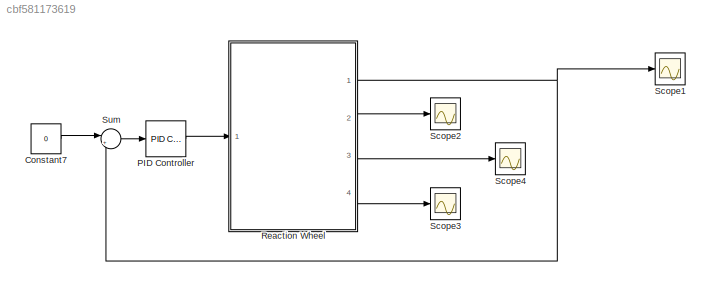
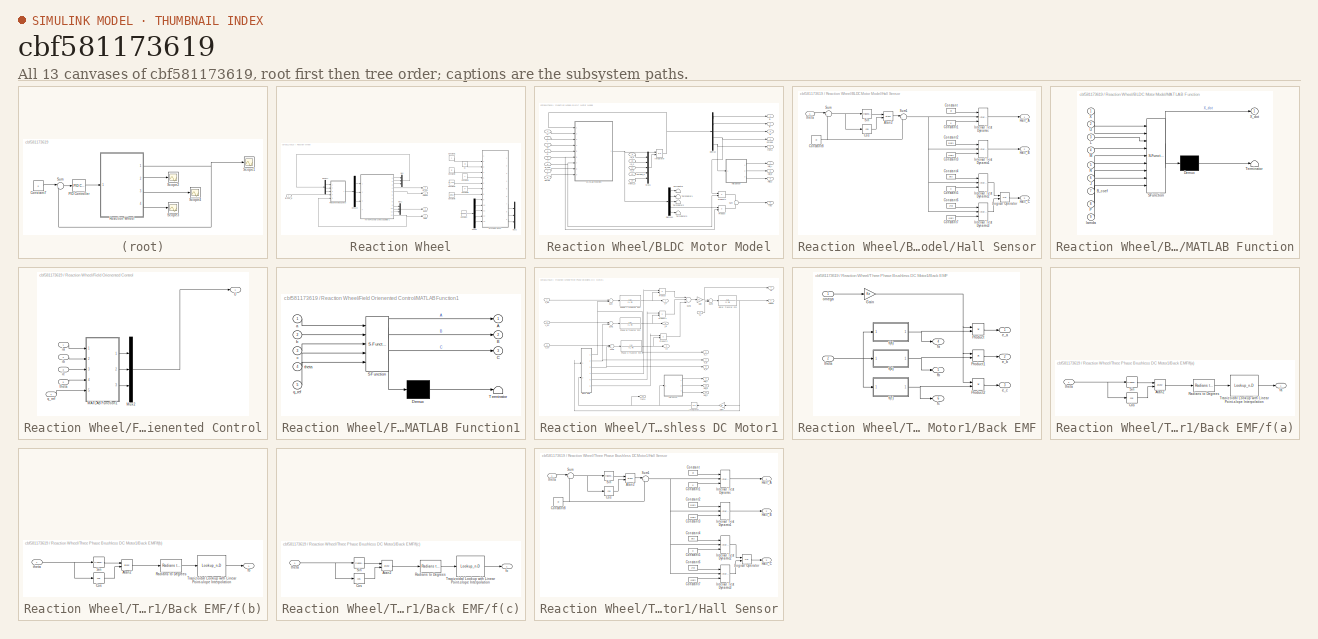
[diagram: thumbnail index - all 13 canvases of the model, root first then tree order]
MODEL slx_cbf581173619
KIND model
CONFIG AbsTol = auto
CONFIG EnableMultiTasking = off
CONFIG FixedStep = auto
CONFIG MaxStep = auto
CONFIG MinStep = auto
CONFIG RelTol = 1e-3
CONFIG SampleTimeConstraint = Unconstrained
CONFIG Solver = VariableStepAuto
CONFIG SolverName = VariableStepAuto
CONFIG StartTime = 0.0
CONFIG StopTime = 10.0
BLOCK [Constant] Constant7
  Value = 0
BLOCK [Reference] PID Controller  REF=simulink/Continuous/PID Controller
  Ports = [1, 1]
  SourceBlock = simulink/Continuous/PID Controller
  SourceProductBaseCode = SL
  SourceProductName = Simulink
  SourceType = PID 1dof
BLOCK [SubSystem] Reaction Wheel
  Ports = [1, 4]
  RequestExecContextInheritance = off
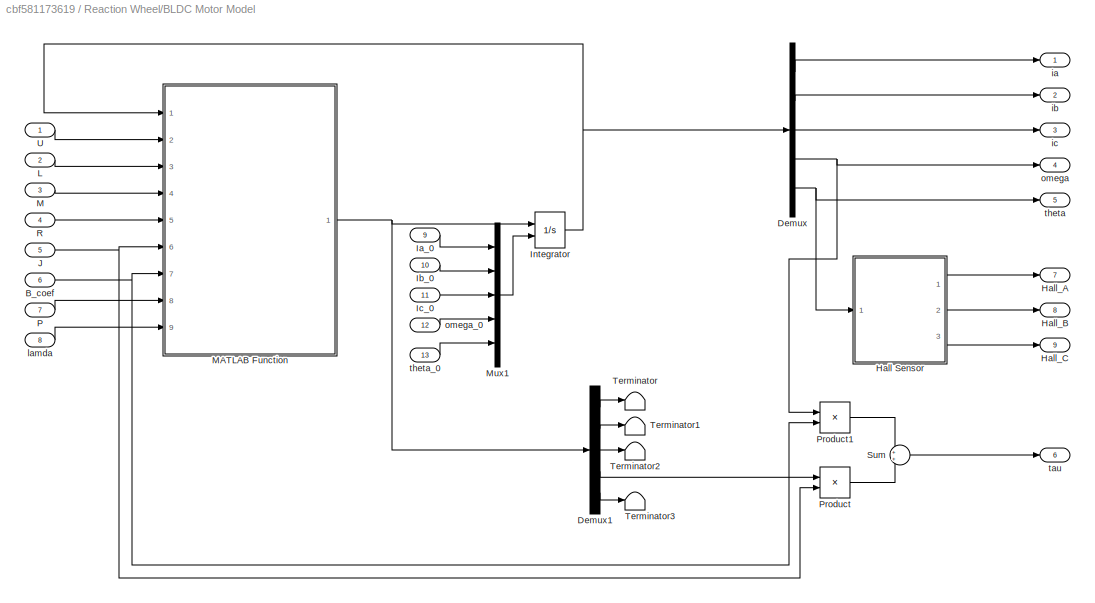
BLOCK [SubSystem] Reaction Wheel/BLDC Motor Model
  Commented = on
  Ports = [13, 9]
  RequestExecContextInheritance = off
BLOCK [Inport] Reaction Wheel/BLDC Motor Model/B_coef
  IconDisplay = Port number
  Port = 6
BLOCK [Demux] Reaction Wheel/BLDC Motor Model/Demux
  DisplayOption = bar
  Outputs = 5
  Ports = [1, 5]
BLOCK [Demux] Reaction Wheel/BLDC Motor Model/Demux1
  DisplayOption = bar
  Outputs = 5
  Ports = [1, 5]
BLOCK [SubSystem] Reaction Wheel/BLDC Motor Model/Hall Sensor
  Ports = [1, 3]
  RequestExecContextInheritance = off
BLOCK [Trigonometry] Reaction Wheel/BLDC Motor Model/Hall Sensor/Atan2
  Operator = atan2
  Ports = [2, 1]
BLOCK [Constant] Reaction Wheel/BLDC Motor Model/Hall Sensor/Constant
  Value = pi
BLOCK [Constant] Reaction Wheel/BLDC Motor Model/Hall Sensor/Constant1
  Value = 0
BLOCK [Constant] Reaction Wheel/BLDC Motor Model/Hall Sensor/Constant2
  Value = 5*pi/3
BLOCK [Constant] Reaction Wheel/BLDC Motor Model/Hall Sensor/Constant3
  Value = 2*pi/3
BLOCK [Constant] Reaction Wheel/BLDC Motor Model/Hall Sensor/Constant4
  Value = pi/3
BLOCK [Constant] Reaction Wheel/BLDC Motor Model/Hall Sensor/Constant5
  Value = 0
BLOCK [Constant] Reaction Wheel/BLDC Motor Model/Hall Sensor/Constant6
  Value = 2*pi
BLOCK [Constant] Reaction Wheel/BLDC Motor Model/Hall Sensor/Constant7
  Value = 4*pi/3
BLOCK [Constant] Reaction Wheel/BLDC Motor Model/Hall Sensor/Constant8
  Value = pi
BLOCK [Trigonometry] Reaction Wheel/BLDC Motor Model/Hall Sensor/Cos
  Operator = cos
  Ports = [1, 1]
BLOCK [Outport] Reaction Wheel/BLDC Motor Model/Hall Sensor/Hall_A
  IconDisplay = Port number
BLOCK [Outport] Reaction Wheel/BLDC Motor Model/Hall Sensor/Hall_B
  IconDisplay = Port number
  Port = 2
BLOCK [Outport] Reaction Wheel/BLDC Motor Model/Hall Sensor/Hall_C
  IconDisplay = Port number
  Port = 3
BLOCK [Reference] Reaction Wheel/BLDC Motor Model/Hall Sensor/Interval Test Dynamic  REF=simulink/Logic and Bit
Operations/Interval Test
Dynamic
  Ports = [3, 1]
  SourceBlock = simulink/Logic and Bit\nOperations/Interval Test\nDynamic
  SourceProductBaseCode = SL
  SourceProductName = Simulink
  SourceType = Interval Test Dynamic
BLOCK [Reference] Reaction Wheel/BLDC Motor Model/Hall Sensor/Interval Test Dynamic1  REF=simulink/Logic and Bit
Operations/Interval Test
Dynamic
  Ports = [3, 1]
  SourceBlock = simulink/Logic and Bit\nOperations/Interval Test\nDynamic
  SourceProductBaseCode = SL
  SourceProductName = Simulink
  SourceType = Interval Test Dynamic
BLOCK [Reference] Reaction Wheel/BLDC Motor Model/Hall Sensor/Interval Test Dynamic2  REF=simulink/Logic and Bit
Operations/Interval Test
Dynamic
  Ports = [3, 1]
  SourceBlock = simulink/Logic and Bit\nOperations/Interval Test\nDynamic
  SourceProductBaseCode = SL
  SourceProductName = Simulink
  SourceType = Interval Test Dynamic
BLOCK [Reference] Reaction Wheel/BLDC Motor Model/Hall Sensor/Interval Test Dynamic3  REF=simulink/Logic and Bit
Operations/Interval Test
Dynamic
  Ports = [3, 1]
  SourceBlock = simulink/Logic and Bit\nOperations/Interval Test\nDynamic
  SourceProductBaseCode = SL
  SourceProductName = Simulink
  SourceType = Interval Test Dynamic
BLOCK [Logic] Reaction Wheel/BLDC Motor Model/Hall Sensor/Logical Operator
  AllPortsSameDT = off
  Operator = OR
  OutDataTypeStr = boolean
  Ports = [2, 1]
BLOCK [Trigonometry] Reaction Wheel/BLDC Motor Model/Hall Sensor/Sin
  Ports = [1, 1]
BLOCK [Sum] Reaction Wheel/BLDC Motor Model/Hall Sensor/Sum
  IconShape = round
  InputSameDT = off
  Inputs = |+-
  OutDataTypeStr = Inherit: Inherit via internal rule
  Ports = [2, 1]
  SaturateOnIntegerOverflow = off
BLOCK [Sum] Reaction Wheel/BLDC Motor Model/Hall Sensor/Sum1
  IconShape = round
  InputSameDT = off
  Inputs = |++
  OutDataTypeStr = Inherit: Inherit via internal rule
  Ports = [2, 1]
  SaturateOnIntegerOverflow = off
BLOCK [Inport] Reaction Wheel/BLDC Motor Model/Hall Sensor/theta
  IconDisplay = Port number
BLOCK [Outport] Reaction Wheel/BLDC Motor Model/Hall_A
  IconDisplay = Port number
  Port = 7
BLOCK [Outport] Reaction Wheel/BLDC Motor Model/Hall_B
  IconDisplay = Port number
  Port = 8
BLOCK [Outport] Reaction Wheel/BLDC Motor Model/Hall_C
  IconDisplay = Port number
  Port = 9
BLOCK [Inport] Reaction Wheel/BLDC Motor Model/Ia_0
  IconDisplay = Port number
  Port = 9
BLOCK [Inport] Reaction Wheel/BLDC Motor Model/Ib_0
  IconDisplay = Port number
  Port = 10
BLOCK [Inport] Reaction Wheel/BLDC Motor Model/Ic_0
  IconDisplay = Port number
  Port = 11
BLOCK [Integrator] Reaction Wheel/BLDC Motor Model/Integrator
  InitialCondition = [0;0;0;0;0]
  InitialConditionSource = external
  Ports = [2, 1]
BLOCK [Inport] Reaction Wheel/BLDC Motor Model/J
  IconDisplay = Port number
  Port = 5
BLOCK [Inport] Reaction Wheel/BLDC Motor Model/L
  IconDisplay = Port number
  Port = 2
BLOCK [Inport] Reaction Wheel/BLDC Motor Model/M
  IconDisplay = Port number
  Port = 3
BLOCK [SubSystem] Reaction Wheel/BLDC Motor Model/MATLAB Function
  ErrorFcn = Stateflow.Translate.translate
  PermitHierarchicalResolution = ExplicitOnly
  Ports = [9, 1]
  RequestExecContextInheritance = off
  SFBlockType = MATLAB Function
  TreatAsAtomicUnit = on
BLOCK [Demux] Reaction Wheel/BLDC Motor Model/MATLAB Function/ Demux 
  Outputs = 1
  Ports = [1, 1]
BLOCK [S-Function] Reaction Wheel/BLDC Motor Model/MATLAB Function/ SFunction 
  EnableBusSupport = on
  FunctionName = sf_sfun
  PortCounts = [9 2]
  Ports = [9, 2]
  SFcnIsStateOwnerBlock = off
  SFunctionDeploymentMode = off
  Tag = Stateflow S-Function ReactionWheel 2
BLOCK [Terminator] Reaction Wheel/BLDC Motor Model/MATLAB Function/ Terminator 
BLOCK [Inport] Reaction Wheel/BLDC Motor Model/MATLAB Function/B_coef
  IconDisplay = Port number
  Port = 7
BLOCK [Inport] Reaction Wheel/BLDC Motor Model/MATLAB Function/J
  IconDisplay = Port number
  Port = 6
BLOCK [Inport] Reaction Wheel/BLDC Motor Model/MATLAB Function/L
  IconDisplay = Port number
  Port = 3
BLOCK [Inport] Reaction Wheel/BLDC Motor Model/MATLAB Function/M
  IconDisplay = Port number
  Port = 4
BLOCK [Inport] Reaction Wheel/BLDC Motor Model/MATLAB Function/P
  IconDisplay = Port number
  Port = 8
BLOCK [Inport] Reaction Wheel/BLDC Motor Model/MATLAB Function/R
  IconDisplay = Port number
  Port = 5
BLOCK [Inport] Reaction Wheel/BLDC Motor Model/MATLAB Function/U
  IconDisplay = Port number
  Port = 2
BLOCK [Inport] Reaction Wheel/BLDC Motor Model/MATLAB Function/X
  IconDisplay = Port number
BLOCK [Outport] Reaction Wheel/BLDC Motor Model/MATLAB Function/X_dot
  IconDisplay = Port number
BLOCK [Inport] Reaction Wheel/BLDC Motor Model/MATLAB Function/lamda
  IconDisplay = Port number
  Port = 9
BLOCK [Mux] Reaction Wheel/BLDC Motor Model/Mux1
  DisplayOption = bar
  Inputs = 5
  Ports = [5, 1]
BLOCK [Inport] Reaction Wheel/BLDC Motor Model/P
  IconDisplay = Port number
  Port = 7
BLOCK [Product] Reaction Wheel/BLDC Motor Model/Product
  InputSameDT = off
  OutDataTypeStr = Inherit: Inherit via internal rule
  Ports = [2, 1]
  RndMeth = Floor
  SaturateOnIntegerOverflow = off
BLOCK [Product] Reaction Wheel/BLDC Motor Model/Product1
  InputSameDT = off
  OutDataTypeStr = Inherit: Inherit via internal rule
  Ports = [2, 1]
  RndMeth = Floor
  SaturateOnIntegerOverflow = off
BLOCK [Inport] Reaction Wheel/BLDC Motor Model/R
  IconDisplay = Port number
  Port = 4
BLOCK [Sum] Reaction Wheel/BLDC Motor Model/Sum
  IconShape = round
  InputSameDT = off
  OutDataTypeStr = Inherit: Inherit via internal rule
  Ports = [2, 1]
  SaturateOnIntegerOverflow = off
BLOCK [Terminator] Reaction Wheel/BLDC Motor Model/Terminator
BLOCK [Terminator] Reaction Wheel/BLDC Motor Model/Terminator1
BLOCK [Terminator] Reaction Wheel/BLDC Motor Model/Terminator2
BLOCK [Terminator] Reaction Wheel/BLDC Motor Model/Terminator3
BLOCK [Inport] Reaction Wheel/BLDC Motor Model/U
  IconDisplay = Port number
BLOCK [Outport] Reaction Wheel/BLDC Motor Model/ia
  IconDisplay = Port number
BLOCK [Outport] Reaction Wheel/BLDC Motor Model/ib
  IconDisplay = Port number
  Port = 2
BLOCK [Outport] Reaction Wheel/BLDC Motor Model/ic
  IconDisplay = Port number
  Port = 3
BLOCK [Inport] Reaction Wheel/BLDC Motor Model/lamda
  IconDisplay = Port number
  Port = 8
BLOCK [Outport] Reaction Wheel/BLDC Motor Model/omega
  IconDisplay = Port number
  Port = 4
BLOCK [Inport] Reaction Wheel/BLDC Motor Model/omega_0
  IconDisplay = Port number
  Port = 12
BLOCK [Outport] Reaction Wheel/BLDC Motor Model/tau
  IconDisplay = Port number
  Port = 6
BLOCK [Outport] Reaction Wheel/BLDC Motor Model/theta
  IconDisplay = Port number
  Port = 5
BLOCK [Inport] Reaction Wheel/BLDC Motor Model/theta_0
  IconDisplay = Port number
  Port = 13
BLOCK [Constant] Reaction Wheel/Constant
  Commented = on
  Value = [0;0;0;0;0]
BLOCK [Constant] Reaction Wheel/Constant1
  Commented = on
  Value = L
BLOCK [Constant] Reaction Wheel/Constant2
  Commented = on
  Value = R
BLOCK [Constant] Reaction Wheel/Constant3
  Commented = on
  Value = J
BLOCK [Constant] Reaction Wheel/Constant4
  Commented = on
  Value = B_coef
BLOCK [Constant] Reaction Wheel/Constant5
  Commented = on
  Value = P
BLOCK [Constant] Reaction Wheel/Constant6
  Commented = on
  Value = lamda
BLOCK [Demux] Reaction Wheel/Demux
  Commented = on
  DisplayOption = bar
  Outputs = 5
  Ports = [1, 5]
BLOCK [Demux] Reaction Wheel/Demux1
  DisplayOption = bar
  Outputs = 3
  Ports = [1, 3]
BLOCK [Demux] Reaction Wheel/Demux2
  DisplayOption = bar
  Outputs = 3
  Ports = [1, 3]
BLOCK [SubSystem] Reaction Wheel/Field Orienented Control
  Ports = [5, 1]
  RequestExecContextInheritance = off
BLOCK [SubSystem] Reaction Wheel/Field Orienented Control/MATLAB Function1
  ErrorFcn = Stateflow.Translate.translate
  PermitHierarchicalResolution = ExplicitOnly
  Ports = [5, 3]
  RequestExecContextInheritance = off
  SFBlockType = MATLAB Function
  TreatAsAtomicUnit = on
BLOCK [Demux] Reaction Wheel/Field Orienented Control/MATLAB Function1/ Demux 
  Outputs = 1
  Ports = [1, 1]
BLOCK [S-Function] Reaction Wheel/Field Orienented Control/MATLAB Function1/ SFunction 
  EnableBusSupport = on
  FunctionName = sf_sfun
  PortCounts = [5 4]
  Ports = [5, 4]
  SFcnIsStateOwnerBlock = off
  SFunctionDeploymentMode = off
  Tag = Stateflow S-Function ReactionWheel 1
BLOCK [Terminator] Reaction Wheel/Field Orienented Control/MATLAB Function1/ Terminator 
BLOCK [Outport] Reaction Wheel/Field Orienented Control/MATLAB Function1/A
  IconDisplay = Port number
BLOCK [Outport] Reaction Wheel/Field Orienented Control/MATLAB Function1/B
  IconDisplay = Port number
  Port = 2
BLOCK [Outport] Reaction Wheel/Field Orienented Control/MATLAB Function1/C
  IconDisplay = Port number
  Port = 3
BLOCK [Inport] Reaction Wheel/Field Orienented Control/MATLAB Function1/a
  IconDisplay = Port number
BLOCK [Inport] Reaction Wheel/Field Orienented Control/MATLAB Function1/b
  IconDisplay = Port number
  Port = 2
BLOCK [Inport] Reaction Wheel/Field Orienented Control/MATLAB Function1/c
  IconDisplay = Port number
  Port = 3
BLOCK [Inport] Reaction Wheel/Field Orienented Control/MATLAB Function1/q_ref
  IconDisplay = Port number
  Port = 5
BLOCK [Inport] Reaction Wheel/Field Orienented Control/MATLAB Function1/theta
  IconDisplay = Port number
  Port = 4
BLOCK [Mux] Reaction Wheel/Field Orienented Control/Mux2
  DisplayOption = bar
  Inputs = 3
  Ports = [3, 1]
BLOCK [Outport] Reaction Wheel/Field Orienented Control/U
  IconDisplay = Port number
BLOCK [Inport] Reaction Wheel/Field Orienented Control/ia
  IconDisplay = Port number
BLOCK [Inport] Reaction Wheel/Field Orienented Control/ib
  IconDisplay = Port number
  Port = 2
BLOCK [Inport] Reaction Wheel/Field Orienented Control/ic
  IconDisplay = Port number
  Port = 3
BLOCK [Inport] Reaction Wheel/Field Orienented Control/q_ref
  IconDisplay = Port number
  Port = 4
BLOCK [Inport] Reaction Wheel/Field Orienented Control/theta
  IconDisplay = Port number
  Port = 5
BLOCK [Outport] Reaction Wheel/HALL
  IconDisplay = Port number
  Port = 4
BLOCK [Constant] Reaction Wheel/M
  Commented = on
  Value = M
BLOCK [Mux] Reaction Wheel/Mux
  DisplayOption = bar
  Inputs = 3
  Ports = [3, 1]
BLOCK [Mux] Reaction Wheel/Mux1
  DisplayOption = bar
  Inputs = 3
  Ports = [3, 1]
BLOCK [Mux] Reaction Wheel/Mux2
  Commented = on
  DisplayOption = bar
  Inputs = 3
  Ports = [3, 1]
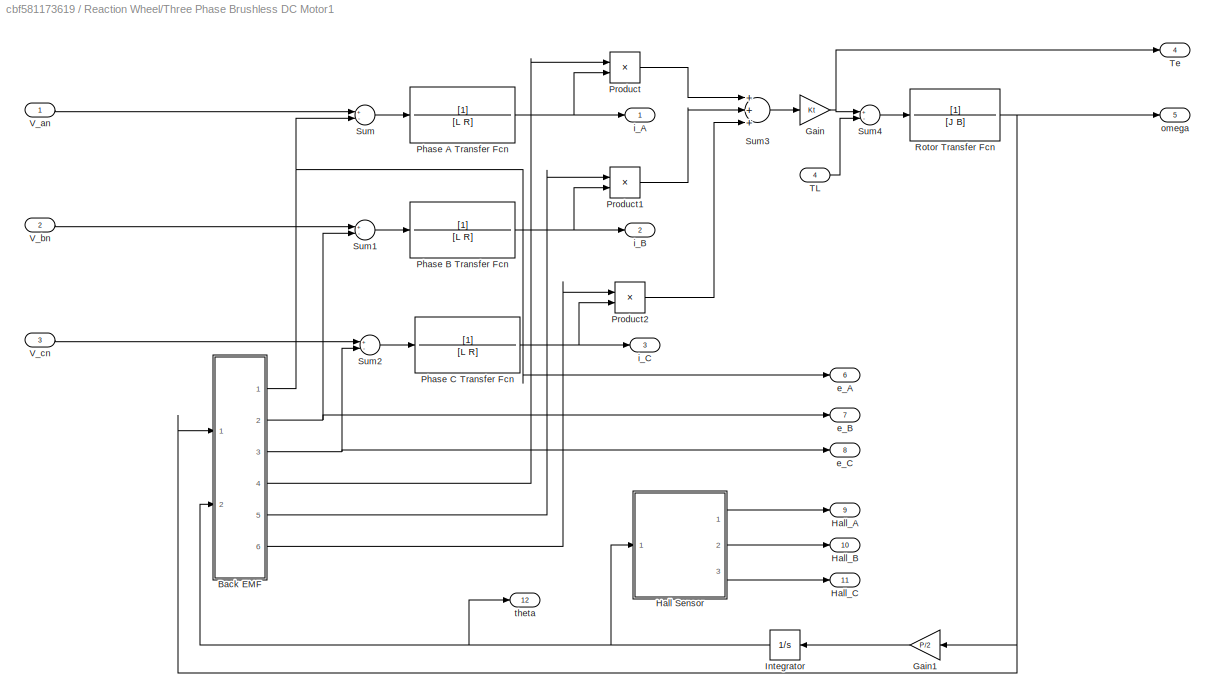
BLOCK [SubSystem] Reaction Wheel/Three Phase Brushless DC Motor1
  Ports = [4, 12]
  RequestExecContextInheritance = off
BLOCK [SubSystem] Reaction Wheel/Three Phase Brushless DC Motor1/Back EMF
  Ports = [2, 6]
  RequestExecContextInheritance = off
BLOCK [Gain] Reaction Wheel/Three Phase Brushless DC Motor1/Back EMF/Gain
  Gain = Ke
  OutDataTypeStr = Inherit: Inherit via internal rule
  ParamDataTypeStr = Inherit: Inherit via internal rule
  SaturateOnIntegerOverflow = off
BLOCK [Product] Reaction Wheel/Three Phase Brushless DC Motor1/Back EMF/Product
  InputSameDT = off
  OutDataTypeStr = Inherit: Inherit via internal rule
  Ports = [2, 1]
  RndMeth = Floor
  SaturateOnIntegerOverflow = off
BLOCK [Product] Reaction Wheel/Three Phase Brushless DC Motor1/Back EMF/Product1
  InputSameDT = off
  OutDataTypeStr = Inherit: Inherit via internal rule
  Ports = [2, 1]
  RndMeth = Floor
  SaturateOnIntegerOverflow = off
BLOCK [Product] Reaction Wheel/Three Phase Brushless DC Motor1/Back EMF/Product2
  InputSameDT = off
  OutDataTypeStr = Inherit: Inherit via internal rule
  Ports = [2, 1]
  RndMeth = Floor
  SaturateOnIntegerOverflow = off
BLOCK [Outport] Reaction Wheel/Three Phase Brushless DC Motor1/Back EMF/e_a
  IconDisplay = Port number
BLOCK [Outport] Reaction Wheel/Three Phase Brushless DC Motor1/Back EMF/e_b
  IconDisplay = Port number
  Port = 2
BLOCK [Outport] Reaction Wheel/Three Phase Brushless DC Motor1/Back EMF/e_c
  IconDisplay = Port number
  Port = 3
BLOCK [SubSystem] Reaction Wheel/Three Phase Brushless DC Motor1/Back EMF/f(a)
  Ports = [1, 1]
  RequestExecContextInheritance = off
BLOCK [Trigonometry] Reaction Wheel/Three Phase Brushless DC Motor1/Back EMF/f(a)/Atan2
  Operator = atan2
  Ports = [2, 1]
BLOCK [Trigonometry] Reaction Wheel/Three Phase Brushless DC Motor1/Back EMF/f(a)/Cos
  Operator = cos
  Ports = [1, 1]
BLOCK [Reference] Reaction Wheel/Three Phase Brushless DC Motor1/Back EMF/f(a)/Radians to Degrees  REF=simulink_extras/Transformations/Radians
to Degrees
  Ports = [1, 1]
  SourceBlock = simulink_extras/Transformations/Radians\nto Degrees
  SourceProductBaseCode = SL
  SourceProductName = Simulink
  SourceType = RadiansToDegrees
BLOCK [Trigonometry] Reaction Wheel/Three Phase Brushless DC Motor1/Back EMF/f(a)/Sin
  Ports = [1, 1]
BLOCK [Lookup_n-D] Reaction Wheel/Three Phase Brushless DC Motor1/Back EMF/f(a)/Trapizoidal Lookup with Linear Point-slope Interpolation
  BreakpointsForDimension1 = [-180,  -120,   -60,     0,    60,   120,   180]
  InternalRulePriority = Speed
  NumberOfTableDimensions = 1
  Ports = [1, 1]
  RndMeth = Simplest
  Table = [-1,-1,-1,1,1,1,-1]
BLOCK [Outport] Reaction Wheel/Three Phase Brushless DC Motor1/Back EMF/f(a)/fa
  IconDisplay = Port number
BLOCK [Inport] Reaction Wheel/Three Phase Brushless DC Motor1/Back EMF/f(a)/theta
  IconDisplay = Port number
BLOCK [SubSystem] Reaction Wheel/Three Phase Brushless DC Motor1/Back EMF/f(b)
  Ports = [1, 1]
  RequestExecContextInheritance = off
BLOCK [Trigonometry] Reaction Wheel/Three Phase Brushless DC Motor1/Back EMF/f(b)/Atan2
  Operator = atan2
  Ports = [2, 1]
BLOCK [Trigonometry] Reaction Wheel/Three Phase Brushless DC Motor1/Back EMF/f(b)/Cos
  Operator = cos
  Ports = [1, 1]
BLOCK [Reference] Reaction Wheel/Three Phase Brushless DC Motor1/Back EMF/f(b)/Radians to Degrees  REF=simulink_extras/Transformations/Radians
to Degrees
  Ports = [1, 1]
  SourceBlock = simulink_extras/Transformations/Radians\nto Degrees
  SourceProductBaseCode = SL
  SourceProductName = Simulink
  SourceType = RadiansToDegrees
BLOCK [Trigonometry] Reaction Wheel/Three Phase Brushless DC Motor1/Back EMF/f(b)/Sin
  Ports = [1, 1]
BLOCK [Lookup_n-D] Reaction Wheel/Three Phase Brushless DC Motor1/Back EMF/f(b)/Trapizoidal Lookup with Linear Point-slope Interpolation
  BreakpointsForDimension1 = [-180,  -120,   -60,     0,    60,   120,   180]
  InternalRulePriority = Speed
  NumberOfTableDimensions = 1
  Ports = [1, 1]
  RndMeth = Simplest
  Table = [1,1,-1,-1,-1,1,1]
BLOCK [Outport] Reaction Wheel/Three Phase Brushless DC Motor1/Back EMF/f(b)/fb
  IconDisplay = Port number
BLOCK [Inport] Reaction Wheel/Three Phase Brushless DC Motor1/Back EMF/f(b)/theta
  IconDisplay = Port number
BLOCK [SubSystem] Reaction Wheel/Three Phase Brushless DC Motor1/Back EMF/f(c)
  Ports = [1, 1]
  RequestExecContextInheritance = off
BLOCK [Trigonometry] Reaction Wheel/Three Phase Brushless DC Motor1/Back EMF/f(c)/Atan2
  Operator = atan2
  Ports = [2, 1]
BLOCK [Trigonometry] Reaction Wheel/Three Phase Brushless DC Motor1/Back EMF/f(c)/Cos
  Operator = cos
  Ports = [1, 1]
BLOCK [Reference] Reaction Wheel/Three Phase Brushless DC Motor1/Back EMF/f(c)/Radians to Degrees  REF=simulink_extras/Transformations/Radians
to Degrees
  Ports = [1, 1]
  SourceBlock = simulink_extras/Transformations/Radians\nto Degrees
  SourceProductBaseCode = SL
  SourceProductName = Simulink
  SourceType = RadiansToDegrees
BLOCK [Trigonometry] Reaction Wheel/Three Phase Brushless DC Motor1/Back EMF/f(c)/Sin
  Ports = [1, 1]
BLOCK [Lookup_n-D] Reaction Wheel/Three Phase Brushless DC Motor1/Back EMF/f(c)/Trapizoidal Lookup with Linear Point-slope Interpolation
  BreakpointsForDimension1 = [-180,  -120,   -60,     0,    60,   120,   180]
  InternalRulePriority = Speed
  NumberOfTableDimensions = 1
  Ports = [1, 1]
  RndMeth = Simplest
  Table = [-1,1,1,1,-1,-1,-1]
BLOCK [Outport] Reaction Wheel/Three Phase Brushless DC Motor1/Back EMF/f(c)/fc
  IconDisplay = Port number
BLOCK [Inport] Reaction Wheel/Three Phase Brushless DC Motor1/Back EMF/f(c)/theta
  IconDisplay = Port number
BLOCK [Outport] Reaction Wheel/Three Phase Brushless DC Motor1/Back EMF/fa
  IconDisplay = Port number
  Port = 4
BLOCK [Outport] Reaction Wheel/Three Phase Brushless DC Motor1/Back EMF/fb
  IconDisplay = Port number
  Port = 5
BLOCK [Outport] Reaction Wheel/Three Phase Brushless DC Motor1/Back EMF/fc
  IconDisplay = Port number
  Port = 6
BLOCK [Inport] Reaction Wheel/Three Phase Brushless DC Motor1/Back EMF/omega
  IconDisplay = Port number
BLOCK [Inport] Reaction Wheel/Three Phase Brushless DC Motor1/Back EMF/theta
  IconDisplay = Port number
  Port = 2
BLOCK [Gain] Reaction Wheel/Three Phase Brushless DC Motor1/Gain
  Gain = Kt
  OutDataTypeStr = Inherit: Inherit via internal rule
  ParamDataTypeStr = Inherit: Inherit via internal rule
  SaturateOnIntegerOverflow = off
BLOCK [Gain] Reaction Wheel/Three Phase Brushless DC Motor1/Gain1
  Gain = P/2
  OutDataTypeStr = Inherit: Inherit via internal rule
  ParamDataTypeStr = Inherit: Inherit via internal rule
  SaturateOnIntegerOverflow = off
BLOCK [SubSystem] Reaction Wheel/Three Phase Brushless DC Motor1/Hall Sensor
  Ports = [1, 3]
  RequestExecContextInheritance = off
BLOCK [Trigonometry] Reaction Wheel/Three Phase Brushless DC Motor1/Hall Sensor/Atan2
  Operator = atan2
  Ports = [2, 1]
BLOCK [Constant] Reaction Wheel/Three Phase Brushless DC Motor1/Hall Sensor/Constant
  Value = pi
BLOCK [Constant] Reaction Wheel/Three Phase Brushless DC Motor1/Hall Sensor/Constant1
  Value = 0
BLOCK [Constant] Reaction Wheel/Three Phase Brushless DC Motor1/Hall Sensor/Constant2
  Value = 5*pi/3
BLOCK [Constant] Reaction Wheel/Three Phase Brushless DC Motor1/Hall Sensor/Constant3
  Value = 2*pi/3
BLOCK [Constant] Reaction Wheel/Three Phase Brushless DC Motor1/Hall Sensor/Constant4
  Value = pi/3
BLOCK [Constant] Reaction Wheel/Three Phase Brushless DC Motor1/Hall Sensor/Constant5
  Value = 0
BLOCK [Constant] Reaction Wheel/Three Phase Brushless DC Motor1/Hall Sensor/Constant6
  Value = 2*pi
BLOCK [Constant] Reaction Wheel/Three Phase Brushless DC Motor1/Hall Sensor/Constant7
  Value = 4*pi/3
BLOCK [Constant] Reaction Wheel/Three Phase Brushless DC Motor1/Hall Sensor/Constant8
  Value = pi
BLOCK [Trigonometry] Reaction Wheel/Three Phase Brushless DC Motor1/Hall Sensor/Cos
  Operator = cos
  Ports = [1, 1]
BLOCK [Outport] Reaction Wheel/Three Phase Brushless DC Motor1/Hall Sensor/Hall_A
  IconDisplay = Port number
BLOCK [Outport] Reaction Wheel/Three Phase Brushless DC Motor1/Hall Sensor/Hall_B
  IconDisplay = Port number
  Port = 2
BLOCK [Outport] Reaction Wheel/Three Phase Brushless DC Motor1/Hall Sensor/Hall_C
  IconDisplay = Port number
  Port = 3
BLOCK [Reference] Reaction Wheel/Three Phase Brushless DC Motor1/Hall Sensor/Interval Test Dynamic  REF=simulink/Logic and Bit
Operations/Interval Test
Dynamic
  Ports = [3, 1]
  SourceBlock = simulink/Logic and Bit\nOperations/Interval Test\nDynamic
  SourceProductBaseCode = SL
  SourceProductName = Simulink
  SourceType = Interval Test Dynamic
BLOCK [Reference] Reaction Wheel/Three Phase Brushless DC Motor1/Hall Sensor/Interval Test Dynamic1  REF=simulink/Logic and Bit
Operations/Interval Test
Dynamic
  Ports = [3, 1]
  SourceBlock = simulink/Logic and Bit\nOperations/Interval Test\nDynamic
  SourceProductBaseCode = SL
  SourceProductName = Simulink
  SourceType = Interval Test Dynamic
BLOCK [Reference] Reaction Wheel/Three Phase Brushless DC Motor1/Hall Sensor/Interval Test Dynamic2  REF=simulink/Logic and Bit
Operations/Interval Test
Dynamic
  Ports = [3, 1]
  SourceBlock = simulink/Logic and Bit\nOperations/Interval Test\nDynamic
  SourceProductBaseCode = SL
  SourceProductName = Simulink
  SourceType = Interval Test Dynamic
BLOCK [Reference] Reaction Wheel/Three Phase Brushless DC Motor1/Hall Sensor/Interval Test Dynamic3  REF=simulink/Logic and Bit
Operations/Interval Test
Dynamic
  Ports = [3, 1]
  SourceBlock = simulink/Logic and Bit\nOperations/Interval Test\nDynamic
  SourceProductBaseCode = SL
  SourceProductName = Simulink
  SourceType = Interval Test Dynamic
BLOCK [Logic] Reaction Wheel/Three Phase Brushless DC Motor1/Hall Sensor/Logical Operator
  AllPortsSameDT = off
  Operator = OR
  OutDataTypeStr = boolean
  Ports = [2, 1]
BLOCK [Trigonometry] Reaction Wheel/Three Phase Brushless DC Motor1/Hall Sensor/Sin
  Ports = [1, 1]
BLOCK [Sum] Reaction Wheel/Three Phase Brushless DC Motor1/Hall Sensor/Sum
  IconShape = round
  InputSameDT = off
  Inputs = |+-
  OutDataTypeStr = Inherit: Inherit via internal rule
  Ports = [2, 1]
  SaturateOnIntegerOverflow = off
BLOCK [Sum] Reaction Wheel/Three Phase Brushless DC Motor1/Hall Sensor/Sum1
  IconShape = round
  InputSameDT = off
  Inputs = |++
  OutDataTypeStr = Inherit: Inherit via internal rule
  Ports = [2, 1]
  SaturateOnIntegerOverflow = off
BLOCK [Inport] Reaction Wheel/Three Phase Brushless DC Motor1/Hall Sensor/theta
  IconDisplay = Port number
BLOCK [Outport] Reaction Wheel/Three Phase Brushless DC Motor1/Hall_A
  IconDisplay = Port number
  Port = 9
BLOCK [Outport] Reaction Wheel/Three Phase Brushless DC Motor1/Hall_B
  IconDisplay = Port number
  Port = 10
BLOCK [Outport] Reaction Wheel/Three Phase Brushless DC Motor1/Hall_C
  IconDisplay = Port number
  Port = 11
BLOCK [Integrator] Reaction Wheel/Three Phase Brushless DC Motor1/Integrator
  Ports = [1, 1]
BLOCK [TransferFcn] Reaction Wheel/Three Phase Brushless DC Motor1/Phase A Transfer Fcn
  Denominator = [L R]
BLOCK [TransferFcn] Reaction Wheel/Three Phase Brushless DC Motor1/Phase B Transfer Fcn
  Denominator = [L R]
BLOCK [TransferFcn] Reaction Wheel/Three Phase Brushless DC Motor1/Phase C Transfer Fcn
  Denominator = [L R]
BLOCK [Product] Reaction Wheel/Three Phase Brushless DC Motor1/Product
  InputSameDT = off
  OutDataTypeStr = Inherit: Inherit via internal rule
  Ports = [2, 1]
  RndMeth = Floor
  SaturateOnIntegerOverflow = off
BLOCK [Product] Reaction Wheel/Three Phase Brushless DC Motor1/Product1
  InputSameDT = off
  OutDataTypeStr = Inherit: Inherit via internal rule
  Ports = [2, 1]
  RndMeth = Floor
  SaturateOnIntegerOverflow = off
BLOCK [Product] Reaction Wheel/Three Phase Brushless DC Motor1/Product2
  InputSameDT = off
  OutDataTypeStr = Inherit: Inherit via internal rule
  Ports = [2, 1]
  RndMeth = Floor
  SaturateOnIntegerOverflow = off
BLOCK [TransferFcn] Reaction Wheel/Three Phase Brushless DC Motor1/Rotor Transfer Fcn
  Denominator = [J B]
BLOCK [Sum] Reaction Wheel/Three Phase Brushless DC Motor1/Sum
  InputSameDT = off
  Inputs = +-
  OutDataTypeStr = Inherit: Inherit via internal rule
  Ports = [2, 1]
  SaturateOnIntegerOverflow = off
BLOCK [Sum] Reaction Wheel/Three Phase Brushless DC Motor1/Sum1
  InputSameDT = off
  Inputs = +-
  OutDataTypeStr = Inherit: Inherit via internal rule
  Ports = [2, 1]
  SaturateOnIntegerOverflow = off
BLOCK [Sum] Reaction Wheel/Three Phase Brushless DC Motor1/Sum2
  InputSameDT = off
  Inputs = +-
  OutDataTypeStr = Inherit: Inherit via internal rule
  Ports = [2, 1]
  SaturateOnIntegerOverflow = off
BLOCK [Sum] Reaction Wheel/Three Phase Brushless DC Motor1/Sum3
  InputSameDT = off
  Inputs = +++
  OutDataTypeStr = Inherit: Inherit via internal rule
  Ports = [3, 1]
  SaturateOnIntegerOverflow = off
BLOCK [Sum] Reaction Wheel/Three Phase Brushless DC Motor1/Sum4
  InputSameDT = off
  Inputs = +-
  OutDataTypeStr = Inherit: Inherit via internal rule
  Ports = [2, 1]
  SaturateOnIntegerOverflow = off
BLOCK [Inport] Reaction Wheel/Three Phase Brushless DC Motor1/TL
  IconDisplay = Port number
  Port = 4
BLOCK [Outport] Reaction Wheel/Three Phase Brushless DC Motor1/Te
  IconDisplay = Port number
  Port = 4
BLOCK [Inport] Reaction Wheel/Three Phase Brushless DC Motor1/V_an
  IconDisplay = Port number
BLOCK [Inport] Reaction Wheel/Three Phase Brushless DC Motor1/V_bn
  IconDisplay = Port number
  Port = 2
BLOCK [Inport] Reaction Wheel/Three Phase Brushless DC Motor1/V_cn
  IconDisplay = Port number
  Port = 3
BLOCK [Outport] Reaction Wheel/Three Phase Brushless DC Motor1/e_A
  IconDisplay = Port number
  Port = 6
BLOCK [Outport] Reaction Wheel/Three Phase Brushless DC Motor1/e_B
  IconDisplay = Port number
  Port = 7
BLOCK [Outport] Reaction Wheel/Three Phase Brushless DC Motor1/e_C
  IconDisplay = Port number
  Port = 8
BLOCK [Outport] Reaction Wheel/Three Phase Brushless DC Motor1/i_A
  IconDisplay = Port number
BLOCK [Outport] Reaction Wheel/Three Phase Brushless DC Motor1/i_B
  IconDisplay = Port number
  Port = 2
BLOCK [Outport] Reaction Wheel/Three Phase Brushless DC Motor1/i_C
  IconDisplay = Port number
  Port = 3
BLOCK [Outport] Reaction Wheel/Three Phase Brushless DC Motor1/omega
  IconDisplay = Port number
  Port = 5
BLOCK [Outport] Reaction Wheel/Three Phase Brushless DC Motor1/theta
  IconDisplay = Port number
  Port = 12
BLOCK [Outport] Reaction Wheel/omega
  IconDisplay = Port number
BLOCK [Outport] Reaction Wheel/theta
  IconDisplay = Port number
  Port = 2
BLOCK [Outport] Reaction Wheel/torque
  IconDisplay = Port number
  Port = 3
BLOCK [Inport] Reaction Wheel/torque_in
  IconDisplay = Port number
BLOCK [Scope] Scope1
  Floating = off
  NumInputPorts = 1
  Ports = [1]
  ScopeSpecificationString = Simulink.scopes.TimeScopeBlockCfg('CurrentConfiguration', extmgr.ConfigurationSet(extmgr.Configuration('Core','General UI',true),extmgr.Configuration('Core','Source UI',true),extmgr.Configuration('Sources','WiredSimulink',true,'DataLoggingVariableName','ScopeData1'),extmgr.Configuration('Visuals','Time Domain',true,'SerializedDisplays',{struct('MinYLimReal','-1.00000','MaxYLimReal','1.00000','YLab...<+1375ch>
BLOCK [Scope] Scope2
  Floating = off
  NumInputPorts = 1
  Ports = [1]
  ScopeSpecificationString = Simulink.scopes.TimeScopeBlockCfg('CurrentConfiguration', extmgr.ConfigurationSet(extmgr.Configuration('Core','General UI',true),extmgr.Configuration('Core','Source UI',true),extmgr.Configuration('Sources','WiredSimulink',true,'DataLoggingVariableName','ScopeData2'),extmgr.Configuration('Visuals','Time Domain',true,'SerializedDisplays',{struct('MinYLimReal','-1.00000','MaxYLimReal','1.00000','YLab...<+1375ch>
BLOCK [Scope] Scope3
  Floating = off
  NumInputPorts = 1
  Ports = [1]
  ScopeSpecificationString = Simulink.scopes.TimeScopeBlockCfg('CurrentConfiguration', extmgr.ConfigurationSet(extmgr.Configuration('Core','General UI',true),extmgr.Configuration('Core','Source UI',true),extmgr.Configuration('Sources','WiredSimulink',true,'DataLoggingVariableName','ScopeData3'),extmgr.Configuration('Visuals','Time Domain',true,'SerializedDisplays',{struct('MinYLimReal','-0.125','MaxYLimReal','1.125','YLabelRe...<+1436ch>
BLOCK [Scope] Scope4
  Floating = off
  NumInputPorts = 1
  Ports = [1]
  ScopeSpecificationString = Simulink.scopes.TimeScopeBlockCfg('CurrentConfiguration', extmgr.ConfigurationSet(extmgr.Configuration('Core','General UI',true),extmgr.Configuration('Core','Source UI',true),extmgr.Configuration('Sources','WiredSimulink',true,'DataLoggingVariableName','ScopeData4'),extmgr.Configuration('Visuals','Time Domain',true,'SerializedDisplays',{struct('MinYLimReal','-1.00000','MaxYLimReal','1.00000','YLab...<+1375ch>
BLOCK [Sum] Sum
  IconShape = round
  InputSameDT = off
  Inputs = |+-
  OutDataTypeStr = Inherit: Inherit via internal rule
  Ports = [2, 1]
  SaturateOnIntegerOverflow = off
LINE Constant7:1 -> Sum:1
LINE PID Controller:1 -> Reaction Wheel:1
NET Reaction Wheel/BLDC Motor Model/B_coef:1 -> Reaction Wheel/BLDC Motor Model/MATLAB Function:7, Reaction Wheel/BLDC Motor Model/Product1:2
LINE Reaction Wheel/BLDC Motor Model/Demux1:1 -> Reaction Wheel/BLDC Motor Model/Terminator:1
LINE Reaction Wheel/BLDC Motor Model/Demux1:2 -> Reaction Wheel/BLDC Motor Model/Terminator1:1
LINE Reaction Wheel/BLDC Motor Model/Demux1:3 -> Reaction Wheel/BLDC Motor Model/Terminator2:1
LINE Reaction Wheel/BLDC Motor Model/Demux1:4 -> Reaction Wheel/BLDC Motor Model/Product:1
LINE Reaction Wheel/BLDC Motor Model/Demux1:5 -> Reaction Wheel/BLDC Motor Model/Terminator3:1
LINE Reaction Wheel/BLDC Motor Model/Demux:1 -> Reaction Wheel/BLDC Motor Model/ia:1
LINE Reaction Wheel/BLDC Motor Model/Demux:2 -> Reaction Wheel/BLDC Motor Model/ib:1
LINE Reaction Wheel/BLDC Motor Model/Demux:3 -> Reaction Wheel/BLDC Motor Model/ic:1
NET Reaction Wheel/BLDC Motor Model/Demux:4 -> Reaction Wheel/BLDC Motor Model/Product1:1, Reaction Wheel/BLDC Motor Model/omega:1
NET Reaction Wheel/BLDC Motor Model/Demux:5 -> Reaction Wheel/BLDC Motor Model/Hall Sensor:1, Reaction Wheel/BLDC Motor Model/theta:1
LINE Reaction Wheel/BLDC Motor Model/Hall Sensor/Atan2:1 -> Reaction Wheel/BLDC Motor Model/Hall Sensor/Sum1:1
LINE Reaction Wheel/BLDC Motor Model/Hall Sensor/Constant1:1 -> Reaction Wheel/BLDC Motor Model/Hall Sensor/Interval Test Dynamic:3
LINE Reaction Wheel/BLDC Motor Model/Hall Sensor/Constant2:1 -> Reaction Wheel/BLDC Motor Model/Hall Sensor/Interval Test Dynamic1:1
LINE Reaction Wheel/BLDC Motor Model/Hall Sensor/Constant3:1 -> Reaction Wheel/BLDC Motor Model/Hall Sensor/Interval Test Dynamic1:3
LINE Reaction Wheel/BLDC Motor Model/Hall Sensor/Constant4:1 -> Reaction Wheel/BLDC Motor Model/Hall Sensor/Interval Test Dynamic2:1
LINE Reaction Wheel/BLDC Motor Model/Hall Sensor/Constant5:1 -> Reaction Wheel/BLDC Motor Model/Hall Sensor/Interval Test Dynamic2:3
LINE Reaction Wheel/BLDC Motor Model/Hall Sensor/Constant6:1 -> Reaction Wheel/BLDC Motor Model/Hall Sensor/Interval Test Dynamic3:1
LINE Reaction Wheel/BLDC Motor Model/Hall Sensor/Constant7:1 -> Reaction Wheel/BLDC Motor Model/Hall Sensor/Interval Test Dynamic3:3
NET Reaction Wheel/BLDC Motor Model/Hall Sensor/Constant8:1 -> Reaction Wheel/BLDC Motor Model/Hall Sensor/Sum1:2, Reaction Wheel/BLDC Motor Model/Hall Sensor/Sum:2
LINE Reaction Wheel/BLDC Motor Model/Hall Sensor/Constant:1 -> Reaction Wheel/BLDC Motor Model/Hall Sensor/Interval Test Dynamic:1
LINE Reaction Wheel/BLDC Motor Model/Hall Sensor/Cos:1 -> Reaction Wheel/BLDC Motor Model/Hall Sensor/Atan2:2
LINE Reaction Wheel/BLDC Motor Model/Hall Sensor/Interval Test Dynamic1:1 -> Reaction Wheel/BLDC Motor Model/Hall Sensor/Hall_B:1
LINE Reaction Wheel/BLDC Motor Model/Hall Sensor/Interval Test Dynamic2:1 -> Reaction Wheel/BLDC Motor Model/Hall Sensor/Logical Operator:1
LINE Reaction Wheel/BLDC Motor Model/Hall Sensor/Interval Test Dynamic3:1 -> Reaction Wheel/BLDC Motor Model/Hall Sensor/Logical Operator:2
LINE Reaction Wheel/BLDC Motor Model/Hall Sensor/Interval Test Dynamic:1 -> Reaction Wheel/BLDC Motor Model/Hall Sensor/Hall_A:1
LINE Reaction Wheel/BLDC Motor Model/Hall Sensor/Logical Operator:1 -> Reaction Wheel/BLDC Motor Model/Hall Sensor/Hall_C:1
LINE Reaction Wheel/BLDC Motor Model/Hall Sensor/Sin:1 -> Reaction Wheel/BLDC Motor Model/Hall Sensor/Atan2:1
NET Reaction Wheel/BLDC Motor Model/Hall Sensor/Sum1:1 -> Reaction Wheel/BLDC Motor Model/Hall Sensor/Interval Test Dynamic1:2, Reaction Wheel/BLDC Motor Model/Hall Sensor/Interval Test Dynamic2:2, Reaction Wheel/BLDC Motor Model/Hall Sensor/Interval Test Dynamic3:2, Reaction Wheel/BLDC Motor Model/Hall Sensor/Interval Test Dynamic:2
NET Reaction Wheel/BLDC Motor Model/Hall Sensor/Sum:1 -> Reaction Wheel/BLDC Motor Model/Hall Sensor/Cos:1, Reaction Wheel/BLDC Motor Model/Hall Sensor/Sin:1
LINE Reaction Wheel/BLDC Motor Model/Hall Sensor/theta:1 -> Reaction Wheel/BLDC Motor Model/Hall Sensor/Sum:1
LINE Reaction Wheel/BLDC Motor Model/Hall Sensor:1 -> Reaction Wheel/BLDC Motor Model/Hall_A:1
LINE Reaction Wheel/BLDC Motor Model/Hall Sensor:2 -> Reaction Wheel/BLDC Motor Model/Hall_B:1
LINE Reaction Wheel/BLDC Motor Model/Hall Sensor:3 -> Reaction Wheel/BLDC Motor Model/Hall_C:1
LINE Reaction Wheel/BLDC Motor Model/Ia_0:1 -> Reaction Wheel/BLDC Motor Model/Mux1:1
LINE Reaction Wheel/BLDC Motor Model/Ib_0:1 -> Reaction Wheel/BLDC Motor Model/Mux1:2
LINE Reaction Wheel/BLDC Motor Model/Ic_0:1 -> Reaction Wheel/BLDC Motor Model/Mux1:3
NET Reaction Wheel/BLDC Motor Model/Integrator:1 -> Reaction Wheel/BLDC Motor Model/Demux:1, Reaction Wheel/BLDC Motor Model/MATLAB Function:1
NET Reaction Wheel/BLDC Motor Model/J:1 -> Reaction Wheel/BLDC Motor Model/MATLAB Function:6, Reaction Wheel/BLDC Motor Model/Product:2
LINE Reaction Wheel/BLDC Motor Model/L:1 -> Reaction Wheel/BLDC Motor Model/MATLAB Function:3
LINE Reaction Wheel/BLDC Motor Model/M:1 -> Reaction Wheel/BLDC Motor Model/MATLAB Function:4
NET Reaction Wheel/BLDC Motor Model/MATLAB Function:1 -> Reaction Wheel/BLDC Motor Model/Demux1:1, Reaction Wheel/BLDC Motor Model/Integrator:1
LINE Reaction Wheel/BLDC Motor Model/Mux1:1 -> Reaction Wheel/BLDC Motor Model/Integrator:2
LINE Reaction Wheel/BLDC Motor Model/P:1 -> Reaction Wheel/BLDC Motor Model/MATLAB Function:8
LINE Reaction Wheel/BLDC Motor Model/Product1:1 -> Reaction Wheel/BLDC Motor Model/Sum:1
LINE Reaction Wheel/BLDC Motor Model/Product:1 -> Reaction Wheel/BLDC Motor Model/Sum:2
LINE Reaction Wheel/BLDC Motor Model/R:1 -> Reaction Wheel/BLDC Motor Model/MATLAB Function:5
LINE Reaction Wheel/BLDC Motor Model/Sum:1 -> Reaction Wheel/BLDC Motor Model/tau:1
LINE Reaction Wheel/BLDC Motor Model/U:1 -> Reaction Wheel/BLDC Motor Model/MATLAB Function:2
LINE Reaction Wheel/BLDC Motor Model/lamda:1 -> Reaction Wheel/BLDC Motor Model/MATLAB Function:9
LINE Reaction Wheel/BLDC Motor Model/omega_0:1 -> Reaction Wheel/BLDC Motor Model/Mux1:4
LINE Reaction Wheel/BLDC Motor Model/theta_0:1 -> Reaction Wheel/BLDC Motor Model/Mux1:5
LINE Reaction Wheel/BLDC Motor Model:7 -> Reaction Wheel/Mux2:1
LINE Reaction Wheel/BLDC Motor Model:8 -> Reaction Wheel/Mux2:2
LINE Reaction Wheel/BLDC Motor Model:9 -> Reaction Wheel/Mux2:3
LINE Reaction Wheel/Constant1:1 -> Reaction Wheel/BLDC Motor Model:2
LINE Reaction Wheel/Constant2:1 -> Reaction Wheel/BLDC Motor Model:4
LINE Reaction Wheel/Constant3:1 -> Reaction Wheel/BLDC Motor Model:5
LINE Reaction Wheel/Constant4:1 -> Reaction Wheel/BLDC Motor Model:6
LINE Reaction Wheel/Constant5:1 -> Reaction Wheel/BLDC Motor Model:7
LINE Reaction Wheel/Constant6:1 -> Reaction Wheel/BLDC Motor Model:8
LINE Reaction Wheel/Constant:1 -> Reaction Wheel/Demux:1
LINE Reaction Wheel/Demux1:1 -> Reaction Wheel/Field Orienented Control:1
LINE Reaction Wheel/Demux1:2 -> Reaction Wheel/Field Orienented Control:2
LINE Reaction Wheel/Demux1:3 -> Reaction Wheel/Field Orienented Control:3
LINE Reaction Wheel/Demux2:1 -> Reaction Wheel/Three Phase Brushless DC Motor1:1
LINE Reaction Wheel/Demux2:2 -> Reaction Wheel/Three Phase Brushless DC Motor1:2
LINE Reaction Wheel/Demux2:3 -> Reaction Wheel/Three Phase Brushless DC Motor1:3
LINE Reaction Wheel/Demux:1 -> Reaction Wheel/BLDC Motor Model:9
LINE Reaction Wheel/Demux:2 -> Reaction Wheel/BLDC Motor Model:10
LINE Reaction Wheel/Demux:3 -> Reaction Wheel/BLDC Motor Model:11
LINE Reaction Wheel/Demux:4 -> Reaction Wheel/BLDC Motor Model:12
LINE Reaction Wheel/Demux:5 -> Reaction Wheel/BLDC Motor Model:13
LINE Reaction Wheel/Field Orienented Control/MATLAB Function1:1 -> Reaction Wheel/Field Orienented Control/Mux2:1
LINE Reaction Wheel/Field Orienented Control/MATLAB Function1:2 -> Reaction Wheel/Field Orienented Control/Mux2:2
LINE Reaction Wheel/Field Orienented Control/MATLAB Function1:3 -> Reaction Wheel/Field Orienented Control/Mux2:3
LINE Reaction Wheel/Field Orienented Control/Mux2:1 -> Reaction Wheel/Field Orienented Control/U:1
LINE Reaction Wheel/Field Orienented Control/ia:1 -> Reaction Wheel/Field Orienented Control/MATLAB Function1:1
LINE Reaction Wheel/Field Orienented Control/ib:1 -> Reaction Wheel/Field Orienented Control/MATLAB Function1:2
LINE Reaction Wheel/Field Orienented Control/ic:1 -> Reaction Wheel/Field Orienented Control/MATLAB Function1:3
LINE Reaction Wheel/Field Orienented Control/q_ref:1 -> Reaction Wheel/Field Orienented Control/MATLAB Function1:5
LINE Reaction Wheel/Field Orienented Control/theta:1 -> Reaction Wheel/Field Orienented Control/MATLAB Function1:4
LINE Reaction Wheel/Field Orienented Control:1 -> Reaction Wheel/Demux2:1
LINE Reaction Wheel/M:1 -> Reaction Wheel/BLDC Motor Model:3
LINE Reaction Wheel/Mux1:1 -> Reaction Wheel/HALL:1
LINE Reaction Wheel/Mux:1 -> Reaction Wheel/Demux1:1
NET Reaction Wheel/Three Phase Brushless DC Motor1/Back EMF/Gain:1 -> Reaction Wheel/Three Phase Brushless DC Motor1/Back EMF/Product1:1, Reaction Wheel/Three Phase Brushless DC Motor1/Back EMF/Product2:1, Reaction Wheel/Three Phase Brushless DC Motor1/Back EMF/Product:1
LINE Reaction Wheel/Three Phase Brushless DC Motor1/Back EMF/Product1:1 -> Reaction Wheel/Three Phase Brushless DC Motor1/Back EMF/e_b:1
LINE Reaction Wheel/Three Phase Brushless DC Motor1/Back EMF/Product2:1 -> Reaction Wheel/Three Phase Brushless DC Motor1/Back EMF/e_c:1
LINE Reaction Wheel/Three Phase Brushless DC Motor1/Back EMF/Product:1 -> Reaction Wheel/Three Phase Brushless DC Motor1/Back EMF/e_a:1
LINE Reaction Wheel/Three Phase Brushless DC Motor1/Back EMF/f(a)/Atan2:1 -> Reaction Wheel/Three Phase Brushless DC Motor1/Back EMF/f(a)/Radians to Degrees:1
LINE Reaction Wheel/Three Phase Brushless DC Motor1/Back EMF/f(a)/Cos:1 -> Reaction Wheel/Three Phase Brushless DC Motor1/Back EMF/f(a)/Atan2:2
LINE Reaction Wheel/Three Phase Brushless DC Motor1/Back EMF/f(a)/Radians to Degrees:1 -> Reaction Wheel/Three Phase Brushless DC Motor1/Back EMF/f(a)/Trapizoidal Lookup with Linear Point-slope Interpolation:1
LINE Reaction Wheel/Three Phase Brushless DC Motor1/Back EMF/f(a)/Sin:1 -> Reaction Wheel/Three Phase Brushless DC Motor1/Back EMF/f(a)/Atan2:1
LINE Reaction Wheel/Three Phase Brushless DC Motor1/Back EMF/f(a)/Trapizoidal Lookup with Linear Point-slope Interpolation:1 -> Reaction Wheel/Three Phase Brushless DC Motor1/Back EMF/f(a)/fa:1
NET Reaction Wheel/Three Phase Brushless DC Motor1/Back EMF/f(a)/theta:1 -> Reaction Wheel/Three Phase Brushless DC Motor1/Back EMF/f(a)/Cos:1, Reaction Wheel/Three Phase Brushless DC Motor1/Back EMF/f(a)/Sin:1
NET Reaction Wheel/Three Phase Brushless DC Motor1/Back EMF/f(a):1 -> Reaction Wheel/Three Phase Brushless DC Motor1/Back EMF/Product:2, Reaction Wheel/Three Phase Brushless DC Motor1/Back EMF/fa:1
LINE Reaction Wheel/Three Phase Brushless DC Motor1/Back EMF/f(b)/Atan2:1 -> Reaction Wheel/Three Phase Brushless DC Motor1/Back EMF/f(b)/Radians to Degrees:1
LINE Reaction Wheel/Three Phase Brushless DC Motor1/Back EMF/f(b)/Cos:1 -> Reaction Wheel/Three Phase Brushless DC Motor1/Back EMF/f(b)/Atan2:2
LINE Reaction Wheel/Three Phase Brushless DC Motor1/Back EMF/f(b)/Radians to Degrees:1 -> Reaction Wheel/Three Phase Brushless DC Motor1/Back EMF/f(b)/Trapizoidal Lookup with Linear Point-slope Interpolation:1
LINE Reaction Wheel/Three Phase Brushless DC Motor1/Back EMF/f(b)/Sin:1 -> Reaction Wheel/Three Phase Brushless DC Motor1/Back EMF/f(b)/Atan2:1
LINE Reaction Wheel/Three Phase Brushless DC Motor1/Back EMF/f(b)/Trapizoidal Lookup with Linear Point-slope Interpolation:1 -> Reaction Wheel/Three Phase Brushless DC Motor1/Back EMF/f(b)/fb:1
NET Reaction Wheel/Three Phase Brushless DC Motor1/Back EMF/f(b)/theta:1 -> Reaction Wheel/Three Phase Brushless DC Motor1/Back EMF/f(b)/Cos:1, Reaction Wheel/Three Phase Brushless DC Motor1/Back EMF/f(b)/Sin:1
NET Reaction Wheel/Three Phase Brushless DC Motor1/Back EMF/f(b):1 -> Reaction Wheel/Three Phase Brushless DC Motor1/Back EMF/Product1:2, Reaction Wheel/Three Phase Brushless DC Motor1/Back EMF/fb:1
LINE Reaction Wheel/Three Phase Brushless DC Motor1/Back EMF/f(c)/Atan2:1 -> Reaction Wheel/Three Phase Brushless DC Motor1/Back EMF/f(c)/Radians to Degrees:1
LINE Reaction Wheel/Three Phase Brushless DC Motor1/Back EMF/f(c)/Cos:1 -> Reaction Wheel/Three Phase Brushless DC Motor1/Back EMF/f(c)/Atan2:2
LINE Reaction Wheel/Three Phase Brushless DC Motor1/Back EMF/f(c)/Radians to Degrees:1 -> Reaction Wheel/Three Phase Brushless DC Motor1/Back EMF/f(c)/Trapizoidal Lookup with Linear Point-slope Interpolation:1
LINE Reaction Wheel/Three Phase Brushless DC Motor1/Back EMF/f(c)/Sin:1 -> Reaction Wheel/Three Phase Brushless DC Motor1/Back EMF/f(c)/Atan2:1
LINE Reaction Wheel/Three Phase Brushless DC Motor1/Back EMF/f(c)/Trapizoidal Lookup with Linear Point-slope Interpolation:1 -> Reaction Wheel/Three Phase Brushless DC Motor1/Back EMF/f(c)/fc:1
NET Reaction Wheel/Three Phase Brushless DC Motor1/Back EMF/f(c)/theta:1 -> Reaction Wheel/Three Phase Brushless DC Motor1/Back EMF/f(c)/Cos:1, Reaction Wheel/Three Phase Brushless DC Motor1/Back EMF/f(c)/Sin:1
NET Reaction Wheel/Three Phase Brushless DC Motor1/Back EMF/f(c):1 -> Reaction Wheel/Three Phase Brushless DC Motor1/Back EMF/Product2:2, Reaction Wheel/Three Phase Brushless DC Motor1/Back EMF/fc:1
LINE Reaction Wheel/Three Phase Brushless DC Motor1/Back EMF/omega:1 -> Reaction Wheel/Three Phase Brushless DC Motor1/Back EMF/Gain:1
NET Reaction Wheel/Three Phase Brushless DC Motor1/Back EMF/theta:1 -> Reaction Wheel/Three Phase Brushless DC Motor1/Back EMF/f(a):1, Reaction Wheel/Three Phase Brushless DC Motor1/Back EMF/f(b):1, Reaction Wheel/Three Phase Brushless DC Motor1/Back EMF/f(c):1
NET Reaction Wheel/Three Phase Brushless DC Motor1/Back EMF:1 -> Reaction Wheel/Three Phase Brushless DC Motor1/Sum:2, Reaction Wheel/Three Phase Brushless DC Motor1/e_A:1
NET Reaction Wheel/Three Phase Brushless DC Motor1/Back EMF:2 -> Reaction Wheel/Three Phase Brushless DC Motor1/Sum1:2, Reaction Wheel/Three Phase Brushless DC Motor1/e_B:1
NET Reaction Wheel/Three Phase Brushless DC Motor1/Back EMF:3 -> Reaction Wheel/Three Phase Brushless DC Motor1/Sum2:2, Reaction Wheel/Three Phase Brushless DC Motor1/e_C:1
LINE Reaction Wheel/Three Phase Brushless DC Motor1/Back EMF:4 -> Reaction Wheel/Three Phase Brushless DC Motor1/Product:1
LINE Reaction Wheel/Three Phase Brushless DC Motor1/Back EMF:5 -> Reaction Wheel/Three Phase Brushless DC Motor1/Product1:1
LINE Reaction Wheel/Three Phase Brushless DC Motor1/Back EMF:6 -> Reaction Wheel/Three Phase Brushless DC Motor1/Product2:1
LINE Reaction Wheel/Three Phase Brushless DC Motor1/Gain1:1 -> Reaction Wheel/Three Phase Brushless DC Motor1/Integrator:1
NET Reaction Wheel/Three Phase Brushless DC Motor1/Gain:1 -> Reaction Wheel/Three Phase Brushless DC Motor1/Sum4:1, Reaction Wheel/Three Phase Brushless DC Motor1/Te:1
LINE Reaction Wheel/Three Phase Brushless DC Motor1/Hall Sensor/Atan2:1 -> Reaction Wheel/Three Phase Brushless DC Motor1/Hall Sensor/Sum1:1
LINE Reaction Wheel/Three Phase Brushless DC Motor1/Hall Sensor/Constant1:1 -> Reaction Wheel/Three Phase Brushless DC Motor1/Hall Sensor/Interval Test Dynamic:3
LINE Reaction Wheel/Three Phase Brushless DC Motor1/Hall Sensor/Constant2:1 -> Reaction Wheel/Three Phase Brushless DC Motor1/Hall Sensor/Interval Test Dynamic1:1
LINE Reaction Wheel/Three Phase Brushless DC Motor1/Hall Sensor/Constant3:1 -> Reaction Wheel/Three Phase Brushless DC Motor1/Hall Sensor/Interval Test Dynamic1:3
LINE Reaction Wheel/Three Phase Brushless DC Motor1/Hall Sensor/Constant4:1 -> Reaction Wheel/Three Phase Brushless DC Motor1/Hall Sensor/Interval Test Dynamic2:1
LINE Reaction Wheel/Three Phase Brushless DC Motor1/Hall Sensor/Constant5:1 -> Reaction Wheel/Three Phase Brushless DC Motor1/Hall Sensor/Interval Test Dynamic2:3
LINE Reaction Wheel/Three Phase Brushless DC Motor1/Hall Sensor/Constant6:1 -> Reaction Wheel/Three Phase Brushless DC Motor1/Hall Sensor/Interval Test Dynamic3:1
LINE Reaction Wheel/Three Phase Brushless DC Motor1/Hall Sensor/Constant7:1 -> Reaction Wheel/Three Phase Brushless DC Motor1/Hall Sensor/Interval Test Dynamic3:3
NET Reaction Wheel/Three Phase Brushless DC Motor1/Hall Sensor/Constant8:1 -> Reaction Wheel/Three Phase Brushless DC Motor1/Hall Sensor/Sum1:2, Reaction Wheel/Three Phase Brushless DC Motor1/Hall Sensor/Sum:2
LINE Reaction Wheel/Three Phase Brushless DC Motor1/Hall Sensor/Constant:1 -> Reaction Wheel/Three Phase Brushless DC Motor1/Hall Sensor/Interval Test Dynamic:1
LINE Reaction Wheel/Three Phase Brushless DC Motor1/Hall Sensor/Cos:1 -> Reaction Wheel/Three Phase Brushless DC Motor1/Hall Sensor/Atan2:2
LINE Reaction Wheel/Three Phase Brushless DC Motor1/Hall Sensor/Interval Test Dynamic1:1 -> Reaction Wheel/Three Phase Brushless DC Motor1/Hall Sensor/Hall_B:1
LINE Reaction Wheel/Three Phase Brushless DC Motor1/Hall Sensor/Interval Test Dynamic2:1 -> Reaction Wheel/Three Phase Brushless DC Motor1/Hall Sensor/Logical Operator:1
LINE Reaction Wheel/Three Phase Brushless DC Motor1/Hall Sensor/Interval Test Dynamic3:1 -> Reaction Wheel/Three Phase Brushless DC Motor1/Hall Sensor/Logical Operator:2
LINE Reaction Wheel/Three Phase Brushless DC Motor1/Hall Sensor/Interval Test Dynamic:1 -> Reaction Wheel/Three Phase Brushless DC Motor1/Hall Sensor/Hall_A:1
LINE Reaction Wheel/Three Phase Brushless DC Motor1/Hall Sensor/Logical Operator:1 -> Reaction Wheel/Three Phase Brushless DC Motor1/Hall Sensor/Hall_C:1
LINE Reaction Wheel/Three Phase Brushless DC Motor1/Hall Sensor/Sin:1 -> Reaction Wheel/Three Phase Brushless DC Motor1/Hall Sensor/Atan2:1
NET Reaction Wheel/Three Phase Brushless DC Motor1/Hall Sensor/Sum1:1 -> Reaction Wheel/Three Phase Brushless DC Motor1/Hall Sensor/Interval Test Dynamic1:2, Reaction Wheel/Three Phase Brushless DC Motor1/Hall Sensor/Interval Test Dynamic2:2, Reaction Wheel/Three Phase Brushless DC Motor1/Hall Sensor/Interval Test Dynamic3:2, Reaction Wheel/Three Phase Brushless DC Motor1/Hall Sensor/Interval Test Dynamic:2
NET Reaction Wheel/Three Phase Brushless DC Motor1/Hall Sensor/Sum:1 -> Reaction Wheel/Three Phase Brushless DC Motor1/Hall Sensor/Cos:1, Reaction Wheel/Three Phase Brushless DC Motor1/Hall Sensor/Sin:1
LINE Reaction Wheel/Three Phase Brushless DC Motor1/Hall Sensor/theta:1 -> Reaction Wheel/Three Phase Brushless DC Motor1/Hall Sensor/Sum:1
LINE Reaction Wheel/Three Phase Brushless DC Motor1/Hall Sensor:1 -> Reaction Wheel/Three Phase Brushless DC Motor1/Hall_A:1
LINE Reaction Wheel/Three Phase Brushless DC Motor1/Hall Sensor:2 -> Reaction Wheel/Three Phase Brushless DC Motor1/Hall_B:1
LINE Reaction Wheel/Three Phase Brushless DC Motor1/Hall Sensor:3 -> Reaction Wheel/Three Phase Brushless DC Motor1/Hall_C:1
NET Reaction Wheel/Three Phase Brushless DC Motor1/Integrator:1 -> Reaction Wheel/Three Phase Brushless DC Motor1/Back EMF:2, Reaction Wheel/Three Phase Brushless DC Motor1/Hall Sensor:1, Reaction Wheel/Three Phase Brushless DC Motor1/theta:1
NET Reaction Wheel/Three Phase Brushless DC Motor1/Phase A Transfer Fcn:1 -> Reaction Wheel/Three Phase Brushless DC Motor1/Product:2, Reaction Wheel/Three Phase Brushless DC Motor1/i_A:1
NET Reaction Wheel/Three Phase Brushless DC Motor1/Phase B Transfer Fcn:1 -> Reaction Wheel/Three Phase Brushless DC Motor1/Product1:2, Reaction Wheel/Three Phase Brushless DC Motor1/i_B:1
NET Reaction Wheel/Three Phase Brushless DC Motor1/Phase C Transfer Fcn:1 -> Reaction Wheel/Three Phase Brushless DC Motor1/Product2:2, Reaction Wheel/Three Phase Brushless DC Motor1/i_C:1
LINE Reaction Wheel/Three Phase Brushless DC Motor1/Product1:1 -> Reaction Wheel/Three Phase Brushless DC Motor1/Sum3:2
LINE Reaction Wheel/Three Phase Brushless DC Motor1/Product2:1 -> Reaction Wheel/Three Phase Brushless DC Motor1/Sum3:3
LINE Reaction Wheel/Three Phase Brushless DC Motor1/Product:1 -> Reaction Wheel/Three Phase Brushless DC Motor1/Sum3:1
NET Reaction Wheel/Three Phase Brushless DC Motor1/Rotor Transfer Fcn:1 -> Reaction Wheel/Three Phase Brushless DC Motor1/Back EMF:1, Reaction Wheel/Three Phase Brushless DC Motor1/Gain1:1, Reaction Wheel/Three Phase Brushless DC Motor1/omega:1
LINE Reaction Wheel/Three Phase Brushless DC Motor1/Sum1:1 -> Reaction Wheel/Three Phase Brushless DC Motor1/Phase B Transfer Fcn:1
LINE Reaction Wheel/Three Phase Brushless DC Motor1/Sum2:1 -> Reaction Wheel/Three Phase Brushless DC Motor1/Phase C Transfer Fcn:1
LINE Reaction Wheel/Three Phase Brushless DC Motor1/Sum3:1 -> Reaction Wheel/Three Phase Brushless DC Motor1/Gain:1
LINE Reaction Wheel/Three Phase Brushless DC Motor1/Sum4:1 -> Reaction Wheel/Three Phase Brushless DC Motor1/Rotor Transfer Fcn:1
LINE Reaction Wheel/Three Phase Brushless DC Motor1/Sum:1 -> Reaction Wheel/Three Phase Brushless DC Motor1/Phase A Transfer Fcn:1
LINE Reaction Wheel/Three Phase Brushless DC Motor1/TL:1 -> Reaction Wheel/Three Phase Brushless DC Motor1/Sum4:2
LINE Reaction Wheel/Three Phase Brushless DC Motor1/V_an:1 -> Reaction Wheel/Three Phase Brushless DC Motor1/Sum:1
LINE Reaction Wheel/Three Phase Brushless DC Motor1/V_bn:1 -> Reaction Wheel/Three Phase Brushless DC Motor1/Sum1:1
LINE Reaction Wheel/Three Phase Brushless DC Motor1/V_cn:1 -> Reaction Wheel/Three Phase Brushless DC Motor1/Sum2:1
LINE Reaction Wheel/Three Phase Brushless DC Motor1:1 -> Reaction Wheel/Mux:1
LINE Reaction Wheel/Three Phase Brushless DC Motor1:10 -> Reaction Wheel/Mux1:2
LINE Reaction Wheel/Three Phase Brushless DC Motor1:11 -> Reaction Wheel/Mux1:3
NET Reaction Wheel/Three Phase Brushless DC Motor1:12 -> Reaction Wheel/Field Orienented Control:5, Reaction Wheel/theta:1
LINE Reaction Wheel/Three Phase Brushless DC Motor1:2 -> Reaction Wheel/Mux:2
LINE Reaction Wheel/Three Phase Brushless DC Motor1:3 -> Reaction Wheel/Mux:3
LINE Reaction Wheel/Three Phase Brushless DC Motor1:4 -> Reaction Wheel/torque:1
LINE Reaction Wheel/Three Phase Brushless DC Motor1:5 -> Reaction Wheel/omega:1
LINE Reaction Wheel/Three Phase Brushless DC Motor1:9 -> Reaction Wheel/Mux1:1
LINE Reaction Wheel/torque_in:1 -> Reaction Wheel/Field Orienented Control:4
NET Reaction Wheel:1 -> Scope1:1, Sum:2
LINE Reaction Wheel:2 -> Scope2:1
LINE Reaction Wheel:3 -> Scope4:1
LINE Reaction Wheel:4 -> Scope3:1
LINE Sum:1 -> PID Controller:1
note: NET lines group one-source signal fan-out (src -> all destinations, sorted); 1:1 wires keep LINE
CHART Reaction Wheel/Field Orienented Control/MATLAB Function1 states=1 transitions=1
  STATE_LABEL 'eML_blk_kernel()'
  STATE_LABEL 'SCRIPT:\nfunction [A,B,C] = foc(a,b,c,theta,q_ref)\n    theta = theta - pi/2; % Phase correction for a alinged with q axis\n    ct = cos(theta);\n    st = sin(theta);\n \n    % /*  Clarke Transform - abc to alpha beta */\n    alpha = ((2*a) - b - c)/3;\n    beta  = (b-c)*0.5773;\n    % /* Clarke to Park Transform - alpha beta to dq */\n    % // phase a alinged with q axis\n    d = alpha*st - beta*ct;\n    q =...<+914ch>'
CHART Reaction Wheel/BLDC Motor Model/MATLAB Function states=1 transitions=1
  STATE_LABEL 'eML_blk_kernel()'
  STATE_LABEL 'SCRIPT:\nfunction X_dot = BLDCDynamics(X,U,L,M,R,J,B_coef,P,lamda)\n%global integ_e\n%% States\n%{\ni_a=X(1);       % current a [Amp]\ni_b=X(2);       % current b [Amp]\ni_c=X(3);       % current c [Amp]\n%}\nw = X(4);       % angular velocity [rad/sec]\ntheta = X(5);   % rotor angle [rad]\n%{\n% Motor Constants\nL = 2.72e-3;        % self-inductance phase  (L_aa = L_bb = L_cc) [H]\nM = 1.5e-3;         % mutual...<+1242ch>'
